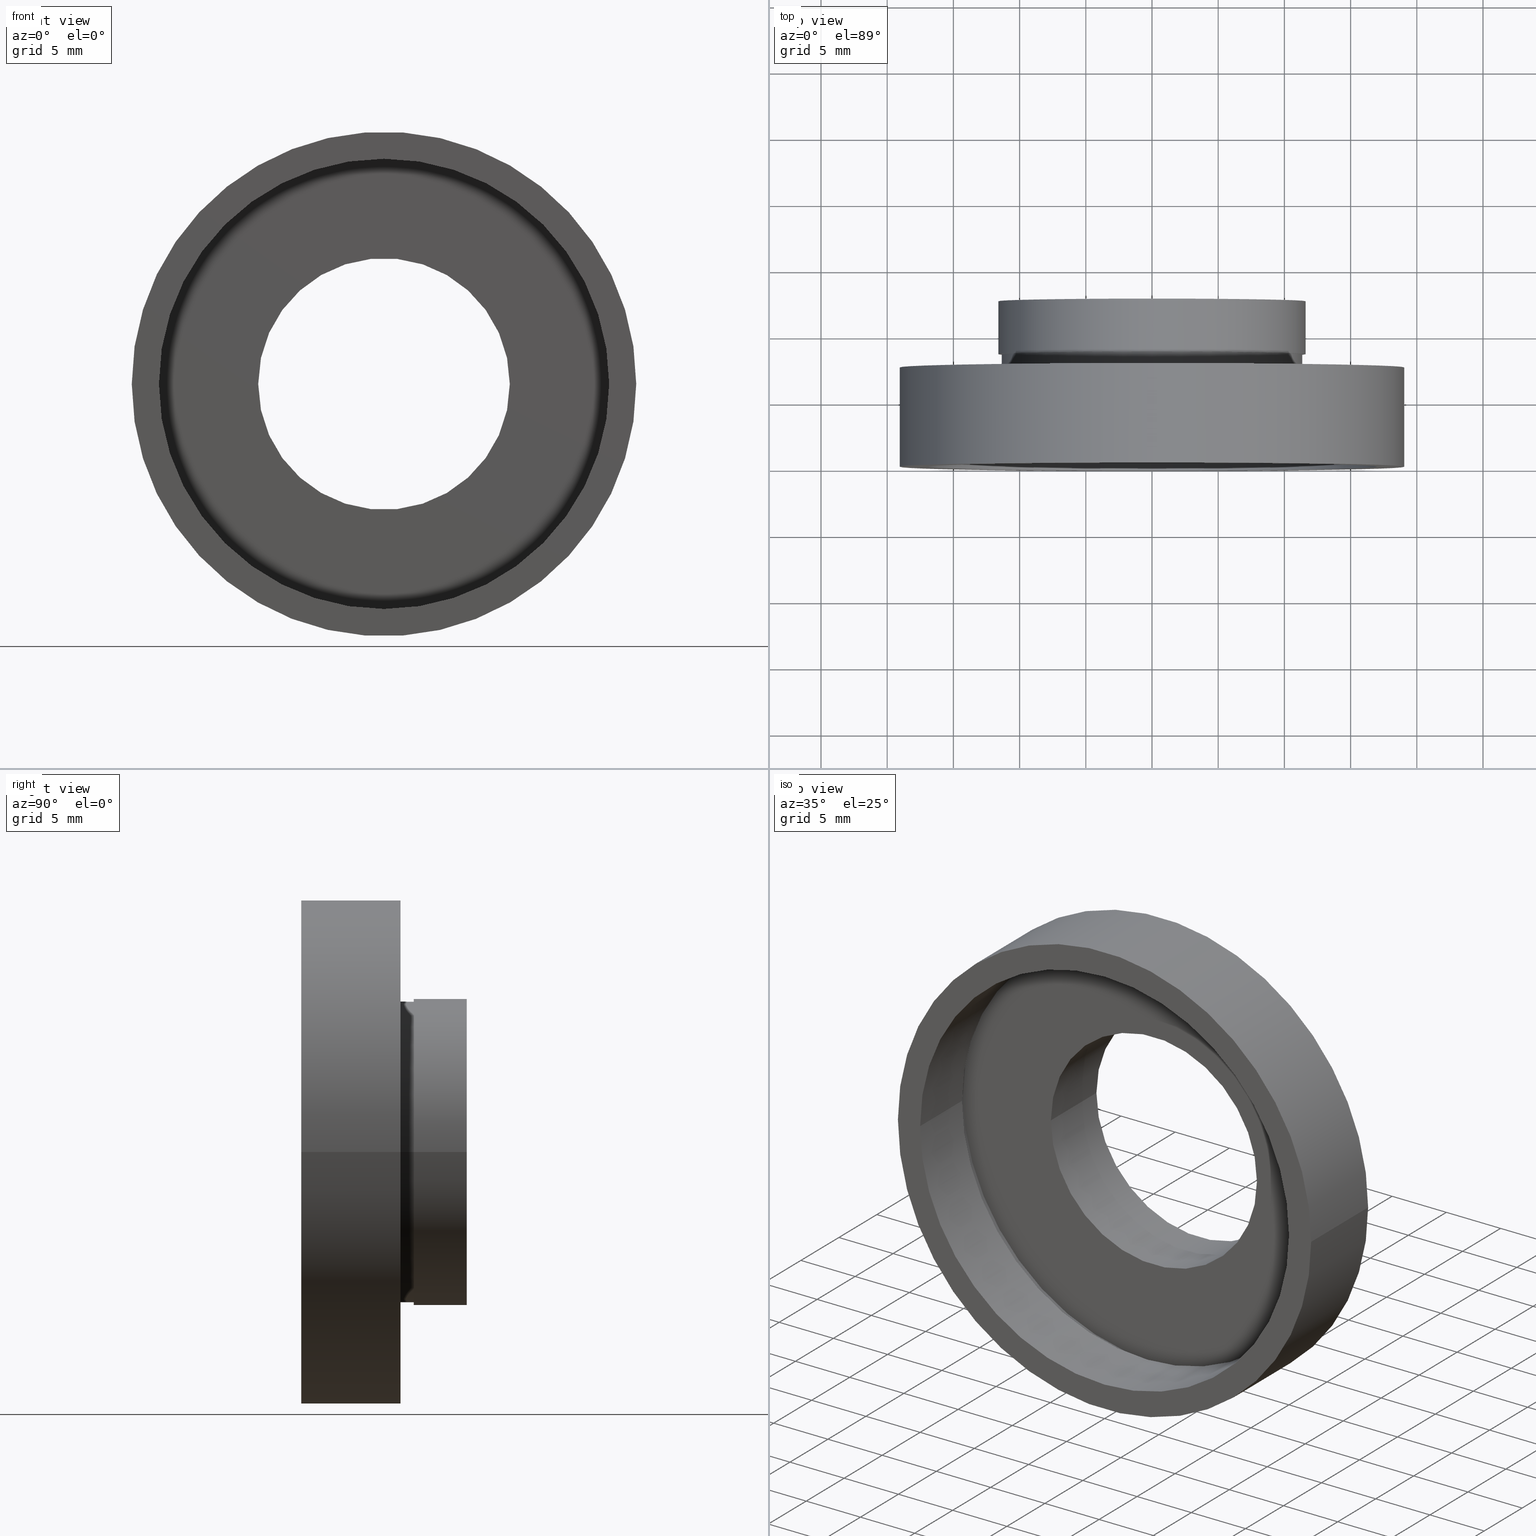
[diagram: canonical four-view strip — front | top / right | iso, engineering-drawing reading convention]
A machine part, canonical four-view strip (front | top / right | iso — engineering-drawing reading convention). The complete STEP part file that produces these views, byte-faithful:
ISO-10303-21;
HEADER;
FILE_DESCRIPTION (( 'STEP AP214' ),
    '1' );
FILE_NAME ('504058.STEP',
    '2019-10-08T05:34:07',
    ( 'user' ),
    ( '΢���й�' ),
    'SwSTEP 2.0',
    'SolidWorks 2016',
    '' );
FILE_SCHEMA (( 'AUTOMOTIVE_DESIGN' ));
ENDSEC;

DATA;
#1 = FACE_BOUND ( 'NONE', #351, .T. ) ;
#2 = DIRECTION ( 'NONE',  ( -1.000000000000000000, -1.224646799147351000E-016, 0.0000000000000000000 ) ) ;
#3 = CYLINDRICAL_SURFACE ( 'NONE', #623, 11.35000000000000000 ) ;
#4 = CARTESIAN_POINT ( 'NONE',  ( 1.149455719078123100E-015, 7.499999999999996400, 0.0000000000000000000 ) ) ;
#5 = ORIENTED_EDGE ( 'NONE', *, *, #318, .F. ) ;
#6 = EDGE_LOOP ( 'NONE', ( #181, #5, #231, #570 ) ) ;
#7 = AXIS2_PLACEMENT_3D ( 'NONE', #342, #563, #84 ) ;
#8 = CARTESIAN_POINT ( 'NONE',  ( 1.149455719078122700E-015, 7.499999999999998200, 0.0000000000000000000 ) ) ;
#9 = UNCERTAINTY_MEASURE_WITH_UNIT (LENGTH_MEASURE( 1.000000000000000100E-005 ), #310, 'distance_accuracy_value', 'NONE');
#10 = DIRECTION ( 'NONE',  ( -1.224646799147351000E-016, 1.000000000000000000, -0.0000000000000000000 ) ) ;
#11 = EDGE_CURVE ( 'NONE', #40, #461, #475, .T. ) ;
#12 = VERTEX_POINT ( 'NONE', #388 ) ;
#13 = DIRECTION ( 'NONE',  ( -1.224646799147351000E-016, 1.000000000000000000, -0.0000000000000000000 ) ) ;
#14 = CARTESIAN_POINT ( 'NONE',  ( 2.067940818438636500E-015, -3.469446951953614200E-015, 0.0000000000000000000 ) ) ;
#15 = CARTESIAN_POINT ( 'NONE',  ( 17.00000000000000400, -1.387547393403117700E-015, 2.081899558550500700E-015 ) ) ;
#16 = AXIS2_PLACEMENT_3D ( 'NONE', #207, #398, #163 ) ;
#17 = CARTESIAN_POINT ( 'NONE',  ( 9.500000000000001800, 16.88601823708207700, 1.163414459189985700E-015 ) ) ;
#18 = EDGE_LOOP ( 'NONE', ( #214, #183, #443, #91 ) ) ;
#19 = APPLICATION_CONTEXT ( 'automotive_design' ) ;
#20 = DIRECTION ( 'NONE',  ( -1.224646799147351000E-016, 1.000000000000000000, -0.0000000000000000000 ) ) ;
#21 = CARTESIAN_POINT ( 'NONE',  ( 9.500000000000001800, 12.49999999999999800, 1.163414459189985700E-015 ) ) ;
#22 = DIRECTION ( 'NONE',  ( -1.000000000000000000, -1.495451272393799500E-016, 0.0000000000000000000 ) ) ;
#23 = UNCERTAINTY_MEASURE_WITH_UNIT (LENGTH_MEASURE( 1.000000000000000100E-005 ), #164, 'distance_accuracy_value', 'NONE');
#24 = CARTESIAN_POINT ( 'NONE',  ( 0.0000000000000000000, 16.88601823708207700, 0.0000000000000000000 ) ) ;
#25 = VECTOR ( 'NONE', #33, 1000.000000000000000 ) ;
#26 = ORIENTED_EDGE ( 'NONE', *, *, #209, .T. ) ;
#27 = DIRECTION ( 'NONE',  ( -1.224646799147351000E-016, 1.000000000000000000, -0.0000000000000000000 ) ) ;
#28 = CARTESIAN_POINT ( 'NONE',  ( 11.60000000000000000, 8.499999999999998200, 0.0000000000000000000 ) ) ;
#29 = FILL_AREA_STYLE ('',( #586 ) ) ;
#30 = CARTESIAN_POINT ( 'NONE',  ( -9.500000000000001800, 16.88601823708207700, 0.0000000000000000000 ) ) ;
#31 =( GEOMETRIC_REPRESENTATION_CONTEXT ( 3 ) GLOBAL_UNCERTAINTY_ASSIGNED_CONTEXT ( ( #338 ) ) GLOBAL_UNIT_ASSIGNED_CONTEXT ( ( #584, #596, #157 ) ) REPRESENTATION_CONTEXT ( 'NONE', 'WORKASPACE' ) );
#32 = VECTOR ( 'NONE', #53, 1000.000000000000000 ) ;
#33 = DIRECTION ( 'NONE',  ( -1.224646799147351000E-016, 1.000000000000000000, -0.0000000000000000000 ) ) ;
#34 = EDGE_LOOP ( 'NONE', ( #578, #262 ) ) ;
#35 = UNCERTAINTY_MEASURE_WITH_UNIT (LENGTH_MEASURE( 1.000000000000000100E-005 ), #50, 'distance_accuracy_value', 'NONE');
#36 = DIRECTION ( 'NONE',  ( -1.000000000000000000, -1.224646799147351000E-016, 0.0000000000000000000 ) ) ;
#37 = STYLED_ITEM ( 'NONE', ( #271 ), #345 ) ;
#38 = DIRECTION ( 'NONE',  ( -1.000000000000000000, -1.224646799147351000E-016, 0.0000000000000000000 ) ) ;
#39 = CARTESIAN_POINT ( 'NONE',  ( -17.60000000000000100, 5.499999999999994700, 0.0000000000000000000 ) ) ;
#40 = VERTEX_POINT ( 'NONE', #374 ) ;
#41 =( NAMED_UNIT ( * ) SI_UNIT ( $, .STERADIAN. ) SOLID_ANGLE_UNIT ( ) );
#42 = EDGE_CURVE ( 'NONE', #441, #233, #349, .T. ) ;
#43 =( LENGTH_UNIT ( ) NAMED_UNIT ( * ) SI_UNIT ( .MILLI., .METRE. ) );
#44 = CYLINDRICAL_SURFACE ( 'NONE', #290, 17.60000000000000100 ) ;
#45 = VERTEX_POINT ( 'NONE', #256 ) ;
#46 = PLANE ( 'NONE',  #186 ) ;
#47 = ORIENTED_EDGE ( 'NONE', *, *, #409, .T. ) ;
#48 =( GEOMETRIC_REPRESENTATION_CONTEXT ( 3 ) GLOBAL_UNCERTAINTY_ASSIGNED_CONTEXT ( ( #484 ) ) GLOBAL_UNIT_ASSIGNED_CONTEXT ( ( #43, #52, #353 ) ) REPRESENTATION_CONTEXT ( 'NONE', 'WORKASPACE' ) );
#49 = ADVANCED_FACE ( 'NONE', ( #101 ), #439, .F. ) ;
#50 =( LENGTH_UNIT ( ) NAMED_UNIT ( * ) SI_UNIT ( .MILLI., .METRE. ) );
#51 = STYLED_ITEM ( 'NONE', ( #153 ), #471 ) ;
#52 =( NAMED_UNIT ( * ) PLANE_ANGLE_UNIT ( ) SI_UNIT ( $, .RADIAN. ) );
#53 = DIRECTION ( 'NONE',  ( -1.224646799147351000E-016, 1.000000000000000000, -0.0000000000000000000 ) ) ;
#54 = FACE_BOUND ( 'NONE', #118, .T. ) ;
#55 = DIRECTION ( 'NONE',  ( 1.000000000000000000, 0.0000000000000000000, 0.0000000000000000000 ) ) ;
#56 = ORIENTED_EDGE ( 'NONE', *, *, #529, .F. ) ;
#57 = CARTESIAN_POINT ( 'NONE',  ( 0.0000000000000000000, 16.88601823708207700, 0.0000000000000000000 ) ) ;
#58 = EDGE_LOOP ( 'NONE', ( #96, #165, #68, #394 ) ) ;
#59 = CARTESIAN_POINT ( 'NONE',  ( 0.0000000000000000000, 16.88601823708207700, 0.0000000000000000000 ) ) ;
#60 = ORIENTED_EDGE ( 'NONE', *, *, #378, .T. ) ;
#61 = DIRECTION ( 'NONE',  ( -1.224646799147351000E-016, 1.000000000000000000, -0.0000000000000000000 ) ) ;
#62 = FACE_OUTER_BOUND ( 'NONE', #125, .T. ) ;
#63 = AXIS2_PLACEMENT_3D ( 'NONE', #135, #515, #336 ) ;
#64 = DIRECTION ( 'NONE',  ( -1.224646799147351000E-016, 1.000000000000000000, -0.0000000000000000000 ) ) ;
#65 = EDGE_CURVE ( 'NONE', #571, #148, #521, .T. ) ;
#66 = EDGE_LOOP ( 'NONE', ( #94, #375 ) ) ;
#67 = VERTEX_POINT ( 'NONE', #171 ) ;
#68 = ORIENTED_EDGE ( 'NONE', *, *, #303, .T. ) ;
#69 = CIRCLE ( 'NONE', #85, 19.05000000000000100 ) ;
#70 = FACE_OUTER_BOUND ( 'NONE', #172, .T. ) ;
#71 = AXIS2_PLACEMENT_3D ( 'NONE', #387, #203, #73 ) ;
#72 = DIRECTION ( 'NONE',  ( -1.000000000000000000, 0.0000000000000000000, 0.0000000000000000000 ) ) ;
#73 = DIRECTION ( 'NONE',  ( -1.000000000000000000, -9.856383386231857600E-017, 0.0000000000000000000 ) ) ;
#74 = VERTEX_POINT ( 'NONE', #316 ) ;
#75 = DIRECTION ( 'NONE',  ( -1.224646799147351000E-016, 1.000000000000000000, -0.0000000000000000000 ) ) ;
#76 = AXIS2_PLACEMENT_3D ( 'NONE', #57, #204, #430 ) ;
#77 = DIRECTION ( 'NONE',  ( -1.000000000000000000, -1.971276677246371500E-016, 0.0000000000000000000 ) ) ;
#78 = DIRECTION ( 'NONE',  ( 1.224646799147351000E-016, -1.000000000000000000, 0.0000000000000000000 ) ) ;
#79 = FACE_BOUND ( 'NONE', #331, .T. ) ;
#80 = DIRECTION ( 'NONE',  ( -1.224646799147351000E-016, 1.000000000000000000, -0.0000000000000000000 ) ) ;
#81 = ORIENTED_EDGE ( 'NONE', *, *, #341, .T. ) ;
#82 = ORIENTED_EDGE ( 'NONE', *, *, #199, .F. ) ;
#83 = SURFACE_SIDE_STYLE ('',( #572 ) ) ;
#84 = DIRECTION ( 'NONE',  ( -1.000000000000000000, -9.130123557772668300E-017, 0.0000000000000000000 ) ) ;
#85 = AXIS2_PLACEMENT_3D ( 'NONE', #243, #61, #260 ) ;
#86 = DIRECTION ( 'NONE',  ( -1.000000000000000000, -1.821231995776175700E-016, 0.0000000000000000000 ) ) ;
#87 = EDGE_CURVE ( 'NONE', #332, #315, #410, .T. ) ;
#88 = SURFACE_STYLE_FILL_AREA ( #617 ) ;
#89 = ORIENTED_EDGE ( 'NONE', *, *, #361, .T. ) ;
#90 = ORIENTED_EDGE ( 'NONE', *, *, #341, .F. ) ;
#91 = ORIENTED_EDGE ( 'NONE', *, *, #213, .F. ) ;
#92 = DIRECTION ( 'NONE',  ( -1.000000000000000000, -9.856383386231857600E-017, 0.0000000000000000000 ) ) ;
#93 = DIRECTION ( 'NONE',  ( -1.000000000000000000, -1.528390727732869900E-016, 0.0000000000000000000 ) ) ;
#94 = ORIENTED_EDGE ( 'NONE', *, *, #169, .F. ) ;
#95 = EDGE_LOOP ( 'NONE', ( #402, #155, #26, #620 ) ) ;
#96 = ORIENTED_EDGE ( 'NONE', *, *, #11, .F. ) ;
#97 = MECHANICAL_DESIGN_GEOMETRIC_PRESENTATION_REPRESENTATION (  '', ( #166 ), #48 ) ;
#98 = EDGE_CURVE ( 'NONE', #215, #67, #431, .T. ) ;
#99 =( LENGTH_UNIT ( ) NAMED_UNIT ( * ) SI_UNIT ( .MILLI., .METRE. ) );
#100 = CIRCLE ( 'NONE', #392, 9.500000000000001800 ) ;
#101 = FACE_OUTER_BOUND ( 'NONE', #507, .T. ) ;
#102 = AXIS2_PLACEMENT_3D ( 'NONE', #573, #553, #568 ) ;
#103 = FACE_OUTER_BOUND ( 'NONE', #514, .T. ) ;
#104 = ORIENTED_EDGE ( 'NONE', *, *, #98, .T. ) ;
#105 = CARTESIAN_POINT ( 'NONE',  ( 11.60000000000000000, 8.500000000000000000, 1.420590287010929500E-015 ) ) ;
#106 = ORIENTED_EDGE ( 'NONE', *, *, #178, .F. ) ;
#107 = PRODUCT ( '504058', '504058', '', ( #314 ) ) ;
#108 = CARTESIAN_POINT ( 'NONE',  ( 0.0000000000000000000, 16.88601823708207700, 0.0000000000000000000 ) ) ;
#109 = FILL_AREA_STYLE ('',( #358 ) ) ;
#110 = AXIS2_PLACEMENT_3D ( 'NONE', #108, #211, #467 ) ;
#111 = APPLICATION_CONTEXT ( 'automotive_design' ) ;
#112 = EDGE_CURVE ( 'NONE', #67, #233, #132, .T. ) ;
#113 = ORIENTED_EDGE ( 'NONE', *, *, #98, .F. ) ;
#114 =( NAMED_UNIT ( * ) SI_UNIT ( $, .STERADIAN. ) SOLID_ANGLE_UNIT ( ) );
#115 = DIRECTION ( 'NONE',  ( -1.224646799147351000E-016, 1.000000000000000000, -0.0000000000000000000 ) ) ;
#116 = DIRECTION ( 'NONE',  ( -1.224646799147351000E-016, 1.000000000000000000, -0.0000000000000000000 ) ) ;
#117 = ORIENTED_EDGE ( 'NONE', *, *, #87, .T. ) ;
#118 = EDGE_LOOP ( 'NONE', ( #56, #523 ) ) ;
#119 = CARTESIAN_POINT ( 'NONE',  ( 5.371323195044474300E-016, 12.49999999999999600, 0.0000000000000000000 ) ) ;
#120 = AXIS2_PLACEMENT_3D ( 'NONE', #548, #185, #252 ) ;
#121 = EDGE_CURVE ( 'NONE', #621, #415, #159, .T. ) ;
#122 = CARTESIAN_POINT ( 'NONE',  ( -11.59999999999999600, 8.499999999999996400, 0.0000000000000000000 ) ) ;
#123 = DIRECTION ( 'NONE',  ( -1.000000000000000000, 0.0000000000000000000, 0.0000000000000000000 ) ) ;
#124 = ORIENTED_EDGE ( 'NONE', *, *, #112, .T. ) ;
#125 = EDGE_LOOP ( 'NONE', ( #197, #538 ) ) ;
#126 = CARTESIAN_POINT ( 'NONE',  ( 9.500000000000001800, 6.499999999999998200, 0.0000000000000000000 ) ) ;
#127 = SURFACE_SIDE_STYLE ('',( #240 ) ) ;
#128 = FACE_OUTER_BOUND ( 'NONE', #6, .T. ) ;
#129 = CIRCLE ( 'NONE', #401, 9.500000000000000000 ) ;
#130 = DIRECTION ( 'NONE',  ( 1.000000000000000000, 1.224646799147351000E-016, 0.0000000000000000000 ) ) ;
#131 = DIRECTION ( 'NONE',  ( 0.0000000000000000000, 0.0000000000000000000, 1.000000000000000000 ) ) ;
#132 = CIRCLE ( 'NONE', #270, 17.60000000000000100 ) ;
#133 = ORIENTED_EDGE ( 'NONE', *, *, #303, .F. ) ;
#134 = AXIS2_PLACEMENT_3D ( 'NONE', #152, #269, #36 ) ;
#135 = CARTESIAN_POINT ( 'NONE',  ( 0.0000000000000000000, 16.88601823708207700, 0.0000000000000000000 ) ) ;
#136 = CIRCLE ( 'NONE', #517, 17.00000000000000400 ) ;
#137 = FACE_OUTER_BOUND ( 'NONE', #556, .T. ) ;
#138 = EDGE_LOOP ( 'NONE', ( #429, #555 ) ) ;
#139 = CARTESIAN_POINT ( 'NONE',  ( 0.0000000000000000000, 16.88601823708207700, 0.0000000000000000000 ) ) ;
#140 = DIRECTION ( 'NONE',  ( -1.224646799147351000E-016, 1.000000000000000000, -0.0000000000000000000 ) ) ;
#141 = PRESENTATION_LAYER_ASSIGNMENT (  '', '', ( #166 ) ) ;
#142 = DIRECTION ( 'NONE',  ( -1.224646799147351000E-016, 1.000000000000000000, -0.0000000000000000000 ) ) ;
#143 = DIRECTION ( 'NONE',  ( -1.224646799147351000E-016, 1.000000000000000000, 0.0000000000000000000 ) ) ;
#144 = EDGE_LOOP ( 'NONE', ( #455, #462 ) ) ;
#145 = DIRECTION ( 'NONE',  ( -1.224646799147351000E-016, 1.000000000000000000, -0.0000000000000000000 ) ) ;
#146 = AXIS2_PLACEMENT_3D ( 'NONE', #580, #531, #446 ) ;
#147 = DIRECTION ( 'NONE',  ( -1.224646799147351000E-016, 1.000000000000000000, -0.0000000000000000000 ) ) ;
#148 = VERTEX_POINT ( 'NONE', #557 ) ;
#149 = VERTEX_POINT ( 'NONE', #15 ) ;
#150 = DIRECTION ( 'NONE',  ( -1.224646799147351000E-016, 1.000000000000000000, -0.0000000000000000000 ) ) ;
#151 = CARTESIAN_POINT ( 'NONE',  ( 5.371323195044473300E-016, 12.49999999999999600, 0.0000000000000000000 ) ) ;
#152 = CARTESIAN_POINT ( 'NONE',  ( 19.05000000000000100, -8.225062277234867800E-016, 0.0000000000000000000 ) ) ;
#153 = PRESENTATION_STYLE_ASSIGNMENT (( #371 ) ) ;
#154 = EDGE_LOOP ( 'NONE', ( #579, #297, #104, #124 ) ) ;
#155 = ORIENTED_EDGE ( 'NONE', *, *, #158, .T. ) ;
#156 = DIRECTION ( 'NONE',  ( -1.224646799147351000E-016, 1.000000000000000000, -0.0000000000000000000 ) ) ;
#157 =( NAMED_UNIT ( * ) SI_UNIT ( $, .STERADIAN. ) SOLID_ANGLE_UNIT ( ) );
#158 = EDGE_CURVE ( 'NONE', #221, #421, #451, .T. ) ;
#159 = CIRCLE ( 'NONE', #497, 19.04999999999999700 ) ;
#160 =( NAMED_UNIT ( * ) SI_UNIT ( $, .STERADIAN. ) SOLID_ANGLE_UNIT ( ) );
#161 = ORIENTED_EDGE ( 'NONE', *, *, #65, .T. ) ;
#162 = ORIENTED_EDGE ( 'NONE', *, *, #372, .F. ) ;
#163 = DIRECTION ( 'NONE',  ( -1.000000000000000000, -1.224646799147351000E-016, 0.0000000000000000000 ) ) ;
#164 =( LENGTH_UNIT ( ) NAMED_UNIT ( * ) SI_UNIT ( .MILLI., .METRE. ) );
#165 = ORIENTED_EDGE ( 'NONE', *, *, #175, .T. ) ;
#166 = STYLED_ITEM ( 'NONE', ( #362 ), #565 ) ;
#167 = APPLICATION_PROTOCOL_DEFINITION ( 'draft international standard', 'automotive_design', 1998, #19 ) ;
#168 = DIRECTION ( 'NONE',  ( -1.000000000000000000, -1.495451272393799500E-016, 0.0000000000000000000 ) ) ;
#169 = EDGE_CURVE ( 'NONE', #148, #571, #136, .T. ) ;
#170 = COLOUR_RGB ( '',1.000000000000000000, 1.000000000000000000, 1.000000000000000000 ) ;
#171 = CARTESIAN_POINT ( 'NONE',  ( -17.60000000000000100, 6.499999999999995600, 0.0000000000000000000 ) ) ;
#172 = EDGE_LOOP ( 'NONE', ( #468, #412, #615, #47 ) ) ;
#173 = EDGE_LOOP ( 'NONE', ( #595, #440 ) ) ;
#174 = CARTESIAN_POINT ( 'NONE',  ( 17.60000000000000100, 5.499999999999998200, 2.155378366499341600E-015 ) ) ;
#175 = EDGE_CURVE ( 'NONE', #40, #545, #179, .T. ) ;
#176 = CARTESIAN_POINT ( 'NONE',  ( 1.026991039163387700E-015, 8.499999999999998200, 0.0000000000000000000 ) ) ;
#177 = DIRECTION ( 'NONE',  ( -1.224646799147351000E-016, 1.000000000000000000, -0.0000000000000000000 ) ) ;
#178 = EDGE_CURVE ( 'NONE', #315, #332, #302, .T. ) ;
#179 = CIRCLE ( 'NONE', #279, 11.35000000000000000 ) ;
#180 = VECTOR ( 'NONE', #444, 1000.000000000000000 ) ;
#181 = ORIENTED_EDGE ( 'NONE', *, *, #382, .F. ) ;
#182 =( NAMED_UNIT ( * ) SI_UNIT ( $, .STERADIAN. ) SOLID_ANGLE_UNIT ( ) );
#183 = ORIENTED_EDGE ( 'NONE', *, *, #178, .T. ) ;
#184 = PRODUCT_DEFINITION_SHAPE ( 'NONE', 'NONE',  #493 ) ;
#185 = DIRECTION ( 'NONE',  ( -1.224646799147351000E-016, 1.000000000000000000, -0.0000000000000000000 ) ) ;
#186 = AXIS2_PLACEMENT_3D ( 'NONE', #126, #143, #2 ) ;
#187 =( GEOMETRIC_REPRESENTATION_CONTEXT ( 3 ) GLOBAL_UNCERTAINTY_ASSIGNED_CONTEXT ( ( #286 ) ) GLOBAL_UNIT_ASSIGNED_CONTEXT ( ( #518, #476, #41 ) ) REPRESENTATION_CONTEXT ( 'NONE', 'WORKASPACE' ) );
#188 = DIRECTION ( 'NONE',  ( -1.000000000000000000, -1.528390727732869900E-016, 0.0000000000000000000 ) ) ;
#189 = VECTOR ( 'NONE', #490, 1000.000000000000000 ) ;
#190 = CIRCLE ( 'NONE', #417, 19.05000000000000100 ) ;
#191 = CLOSED_SHELL ( 'NONE', ( #322, #512, #565, #560, #546, #49, #614, #406, #464, #396, #236, #345, #212, #471, #267, #535, #428, #457 ) ) ;
#192 = DIRECTION ( 'NONE',  ( 1.000000000000000000, 1.224646799147351000E-016, 0.0000000000000000000 ) ) ;
#193 =( NAMED_UNIT ( * ) PLANE_ANGLE_UNIT ( ) SI_UNIT ( $, .RADIAN. ) );
#194 = CARTESIAN_POINT ( 'NONE',  ( 9.500000000000001800, 12.49999999999999800, 0.0000000000000000000 ) ) ;
#195 = PLANE ( 'NONE',  #206 ) ;
#196 = DIRECTION ( 'NONE',  ( -1.000000000000000000, -1.020425574104004000E-016, 0.0000000000000000000 ) ) ;
#197 = ORIENTED_EDGE ( 'NONE', *, *, #121, .F. ) ;
#198 =( GEOMETRIC_REPRESENTATION_CONTEXT ( 3 ) GLOBAL_UNCERTAINTY_ASSIGNED_CONTEXT ( ( #465 ) ) GLOBAL_UNIT_ASSIGNED_CONTEXT ( ( #420, #244, #237 ) ) REPRESENTATION_CONTEXT ( 'NONE', 'WORKASPACE' ) );
#199 = EDGE_CURVE ( 'NONE', #45, #12, #190, .T. ) ;
#200 = DIRECTION ( 'NONE',  ( -1.224646799147351000E-016, 1.000000000000000000, -0.0000000000000000000 ) ) ;
#201 = CARTESIAN_POINT ( 'NONE',  ( -11.34999999999999800, 7.499999999999994700, 0.0000000000000000000 ) ) ;
#202 = COLOUR_RGB ( '',1.000000000000000000, 1.000000000000000000, 1.000000000000000000 ) ;
#203 = DIRECTION ( 'NONE',  ( -1.224646799147351000E-016, 1.000000000000000000, -0.0000000000000000000 ) ) ;
#204 = DIRECTION ( 'NONE',  ( -1.224646799147351000E-016, 1.000000000000000000, -0.0000000000000000000 ) ) ;
#205 = ORIENTED_EDGE ( 'NONE', *, *, #372, .T. ) ;
#206 = AXIS2_PLACEMENT_3D ( 'NONE', #28, #373, #38 ) ;
#207 = CARTESIAN_POINT ( 'NONE',  ( 2.067940818438636500E-015, -3.469446951953614200E-015, 0.0000000000000000000 ) ) ;
#208 = DIRECTION ( 'NONE',  ( -1.224646799147351000E-016, 1.000000000000000000, -0.0000000000000000000 ) ) ;
#209 = EDGE_CURVE ( 'NONE', #421, #395, #287, .T. ) ;
#210 = VECTOR ( 'NONE', #80, 1000.000000000000000 ) ;
#211 = DIRECTION ( 'NONE',  ( -1.224646799147351000E-016, 1.000000000000000000, -0.0000000000000000000 ) ) ;
#212 = ADVANCED_FACE ( 'NONE', ( #79, #569 ), #357, .F. ) ;
#213 = EDGE_CURVE ( 'NONE', #74, #404, #265, .T. ) ;
#214 = ORIENTED_EDGE ( 'NONE', *, *, #539, .F. ) ;
#215 = VERTEX_POINT ( 'NONE', #39 ) ;
#216 = CARTESIAN_POINT ( 'NONE',  ( 1.026991039163388100E-015, 8.499999999999994700, 0.0000000000000000000 ) ) ;
#217 = DIRECTION ( 'NONE',  ( -1.000000000000000000, -1.224646799147351500E-016, 0.0000000000000000000 ) ) ;
#218 = SURFACE_STYLE_FILL_AREA ( #613 ) ;
#219 = AXIS2_PLACEMENT_3D ( 'NONE', #216, #251, #188 ) ;
#220 = EDGE_CURVE ( 'NONE', #332, #404, #438, .T. ) ;
#221 = VERTEX_POINT ( 'NONE', #386 ) ;
#222 = EDGE_LOOP ( 'NONE', ( #288, #509, #391, #133 ) ) ;
#223 = DIRECTION ( 'NONE',  ( -1.224646799147351000E-016, 1.000000000000000000, -0.0000000000000000000 ) ) ;
#224 = CARTESIAN_POINT ( 'NONE',  ( 11.35000000000000100, 7.499999999999997300, 0.0000000000000000000 ) ) ;
#225 = CARTESIAN_POINT ( 'NONE',  ( 17.60000000000000100, 6.499999999999999100, 2.155378366499341600E-015 ) ) ;
#226 = CARTESIAN_POINT ( 'NONE',  ( 5.371323195044473300E-016, 12.49999999999999600, 0.0000000000000000000 ) ) ;
#227 = AXIS2_PLACEMENT_3D ( 'NONE', #139, #208, #77 ) ;
#228 = EDGE_CURVE ( 'NONE', #296, #148, #426, .T. ) ;
#229 = CIRCLE ( 'NONE', #102, 17.60000000000000100 ) ;
#230 = COLOUR_RGB ( '',1.000000000000000000, 1.000000000000000000, 1.000000000000000000 ) ;
#231 = ORIENTED_EDGE ( 'NONE', *, *, #228, .T. ) ;
#232 = FILL_AREA_STYLE_COLOUR ( '', #294 ) ;
#233 = VERTEX_POINT ( 'NONE', #225 ) ;
#234 = DIRECTION ( 'NONE',  ( 1.224646799147351000E-016, -1.000000000000000000, 0.0000000000000000000 ) ) ;
#235 = SURFACE_STYLE_USAGE ( .BOTH. , #239 ) ;
#236 = ADVANCED_FACE ( 'NONE', ( #137, #1 ), #46, .F. ) ;
#237 =( NAMED_UNIT ( * ) SI_UNIT ( $, .STERADIAN. ) SOLID_ANGLE_UNIT ( ) );
#238 = FACE_OUTER_BOUND ( 'NONE', #144, .T. ) ;
#239 = SURFACE_SIDE_STYLE ('',( #561 ) ) ;
#240 = SURFACE_STYLE_FILL_AREA ( #109 ) ;
#241 = PLANE ( 'NONE',  #134 ) ;
#242 = EDGE_CURVE ( 'NONE', #404, #74, #369, .T. ) ;
#243 = CARTESIAN_POINT ( 'NONE',  ( 1.149455719078122700E-015, 7.499999999999998200, 0.0000000000000000000 ) ) ;
#244 =( NAMED_UNIT ( * ) PLANE_ANGLE_UNIT ( ) SI_UNIT ( $, .RADIAN. ) );
#245 = FILL_AREA_STYLE ('',( #272 ) ) ;
#246 = ORIENTED_EDGE ( 'NONE', *, *, #312, .F. ) ;
#247 = AXIS2_PLACEMENT_3D ( 'NONE', #151, #75, #249 ) ;
#248 = MECHANICAL_DESIGN_GEOMETRIC_PRESENTATION_REPRESENTATION (  '', ( #277 ), #348 ) ;
#249 = DIRECTION ( 'NONE',  ( -1.000000000000000000, -1.826024711554533400E-016, 0.0000000000000000000 ) ) ;
#250 = EDGE_CURVE ( 'NONE', #221, #299, #129, .T. ) ;
#251 = DIRECTION ( 'NONE',  ( -1.224646799147351000E-016, 1.000000000000000000, -0.0000000000000000000 ) ) ;
#252 = DIRECTION ( 'NONE',  ( -1.000000000000000000, 0.0000000000000000000, 0.0000000000000000000 ) ) ;
#253 = SURFACE_STYLE_USAGE ( .BOTH. , #127 ) ;
#254 = ORIENTED_EDGE ( 'NONE', *, *, #242, .F. ) ;
#255 =( LENGTH_UNIT ( ) NAMED_UNIT ( * ) SI_UNIT ( .MILLI., .METRE. ) );
#256 = CARTESIAN_POINT ( 'NONE',  ( 19.05000000000000100, 7.500000000000000900, 2.332952152375707600E-015 ) ) ;
#257 = CARTESIAN_POINT ( 'NONE',  ( -19.04999999999999400, -5.802399104329317500E-015, 0.0000000000000000000 ) ) ;
#258 = CYLINDRICAL_SURFACE ( 'NONE', #472, 19.04999999999999700 ) ;
#259 = MECHANICAL_DESIGN_GEOMETRIC_PRESENTATION_REPRESENTATION (  '', ( #550 ), #198 ) ;
#260 = DIRECTION ( 'NONE',  ( -1.000000000000000000, -1.365923996832131600E-016, 0.0000000000000000000 ) ) ;
#261 = DIRECTION ( 'NONE',  ( 1.224646799147351000E-016, -1.000000000000000000, 0.0000000000000000000 ) ) ;
#262 = ORIENTED_EDGE ( 'NONE', *, *, #424, .T. ) ;
#263 = CARTESIAN_POINT ( 'NONE',  ( -11.34999999999999800, 8.499999999999992900, 0.0000000000000000000 ) ) ;
#264 = CARTESIAN_POINT ( 'NONE',  ( -11.60000000000000000, 16.88601823708207700, 0.0000000000000000000 ) ) ;
#265 = CIRCLE ( 'NONE', #335, 11.60000000000000000 ) ;
#266 = AXIS2_PLACEMENT_3D ( 'NONE', #119, #13, #366 ) ;
#267 = ADVANCED_FACE ( 'NONE', ( #466, #482 ), #195, .F. ) ;
#268 = ORIENTED_EDGE ( 'NONE', *, *, #112, .F. ) ;
#269 = DIRECTION ( 'NONE',  ( -1.224646799147351000E-016, 1.000000000000000000, 0.0000000000000000000 ) ) ;
#270 = AXIS2_PLACEMENT_3D ( 'NONE', #479, #589, #92 ) ;
#271 = PRESENTATION_STYLE_ASSIGNMENT (( #285 ) ) ;
#272 = FILL_AREA_STYLE_COLOUR ( '', #170 ) ;
#273 = PRESENTATION_STYLE_ASSIGNMENT (( #253 ) ) ;
#274 = ORIENTED_EDGE ( 'NONE', *, *, #42, .T. ) ;
#275 = EDGE_LOOP ( 'NONE', ( #117, #594, #254, #474 ) ) ;
#276 = SURFACE_STYLE_USAGE ( .BOTH. , #432 ) ;
#277 = STYLED_ITEM ( 'NONE', ( #273 ), #389 ) ;
#278 = CARTESIAN_POINT ( 'NONE',  ( 5.371323195044474300E-016, 12.49999999999999600, 0.0000000000000000000 ) ) ;
#279 = AXIS2_PLACEMENT_3D ( 'NONE', #4, #618, #610 ) ;
#280 = DIRECTION ( 'NONE',  ( -1.000000000000000000, -1.971276677246371500E-016, 0.0000000000000000000 ) ) ;
#281 = EDGE_LOOP ( 'NONE', ( #246, #274, #81, #113 ) ) ;
#282 =( NAMED_UNIT ( * ) PLANE_ANGLE_UNIT ( ) SI_UNIT ( $, .RADIAN. ) );
#283 = DIRECTION ( 'NONE',  ( -1.000000000000000000, -9.856383386231857600E-017, 0.0000000000000000000 ) ) ;
#284 = DIRECTION ( 'NONE',  ( 1.000000000000000000, 1.224646799147351000E-016, 0.0000000000000000000 ) ) ;
#285 = SURFACE_STYLE_USAGE ( .BOTH. , #598 ) ;
#286 = UNCERTAINTY_MEASURE_WITH_UNIT (LENGTH_MEASURE( 1.000000000000000100E-005 ), #518, 'distance_accuracy_value', 'NONE');
#287 = CIRCLE ( 'NONE', #247, 9.500000000000001800 ) ;
#288 = ORIENTED_EDGE ( 'NONE', *, *, #529, .T. ) ;
#289 = CARTESIAN_POINT ( 'NONE',  ( 11.35000000000000100, 8.499999999999996400, 1.389974117032245900E-015 ) ) ;
#290 = AXIS2_PLACEMENT_3D ( 'NONE', #59, #156, #280 ) ;
#291 = ORIENTED_EDGE ( 'NONE', *, *, #393, .T. ) ;
#292 = ORIENTED_EDGE ( 'NONE', *, *, #566, .T. ) ;
#293 = STYLED_ITEM ( 'NONE', ( #501 ), #49 ) ;
#294 = COLOUR_RGB ( '',1.000000000000000000, 1.000000000000000000, 1.000000000000000000 ) ;
#295 = PRESENTATION_STYLE_ASSIGNMENT (( #276 ) ) ;
#296 = VERTEX_POINT ( 'NONE', #325 ) ;
#297 = ORIENTED_EDGE ( 'NONE', *, *, #352, .F. ) ;
#298 = AXIS2_PLACEMENT_3D ( 'NONE', #194, #78, #130 ) ;
#299 = VERTEX_POINT ( 'NONE', #327 ) ;
#300 = CARTESIAN_POINT ( 'NONE',  ( 0.0000000000000000000, 16.88601823708207700, 0.0000000000000000000 ) ) ;
#301 = FILL_AREA_STYLE_COLOUR ( '', #202 ) ;
#302 = CIRCLE ( 'NONE', #376, 11.59999999999999800 ) ;
#303 = EDGE_CURVE ( 'NONE', #545, #510, #600, .T. ) ;
#304 = EDGE_LOOP ( 'NONE', ( #89, #291 ) ) ;
#305 = ORIENTED_EDGE ( 'NONE', *, *, #228, .F. ) ;
#306 = SURFACE_SIDE_STYLE ('',( #88 ) ) ;
#307 = STYLED_ITEM ( 'NONE', ( #295 ), #323 ) ;
#308 = PRESENTATION_LAYER_ASSIGNMENT (  '', '', ( #277 ) ) ;
#309 = COLOUR_RGB ( '',1.000000000000000000, 1.000000000000000000, 1.000000000000000000 ) ;
#310 =( LENGTH_UNIT ( ) NAMED_UNIT ( * ) SI_UNIT ( .MILLI., .METRE. ) );
#311 = LINE ( 'NONE', #30, #519 ) ;
#312 = EDGE_CURVE ( 'NONE', #441, #215, #321, .T. ) ;
#313 = CIRCLE ( 'NONE', #478, 11.35000000000000000 ) ;
#314 = PRODUCT_CONTEXT ( 'NONE', #111, 'mechanical' ) ;
#315 = VERTEX_POINT ( 'NONE', #105 ) ;
#316 = CARTESIAN_POINT ( 'NONE',  ( 11.60000000000000000, 12.49999999999999800, 1.420590287010929500E-015 ) ) ;
#317 = CARTESIAN_POINT ( 'NONE',  ( 17.00000000000000400, 5.500000000000000000, 0.0000000000000000000 ) ) ;
#318 = EDGE_CURVE ( 'NONE', #296, #149, #552, .T. ) ;
#319 = FACE_OUTER_BOUND ( 'NONE', #173, .T. ) ;
#320 = CARTESIAN_POINT ( 'NONE',  ( -11.35000000000000000, 16.88601823708207700, 0.0000000000000000000 ) ) ;
#321 = CIRCLE ( 'NONE', #71, 17.60000000000000100 ) ;
#322 = ADVANCED_FACE ( 'NONE', ( #103 ), #609, .T. ) ;
#323 = MANIFOLD_SOLID_BREP ( '��ת1', #191 ) ;
#324 = STYLED_ITEM ( 'NONE', ( #437 ), #406 ) ;
#325 = CARTESIAN_POINT ( 'NONE',  ( -16.99999999999999600, -5.551346510504111700E-015, 0.0000000000000000000 ) ) ;
#326 = EDGE_CURVE ( 'NONE', #299, #395, #311, .T. ) ;
#327 = CARTESIAN_POINT ( 'NONE',  ( -9.499999999999998200, 6.499999999999996400, 0.0000000000000000000 ) ) ;
#328 = LINE ( 'NONE', #379, #380 ) ;
#329 = CYLINDRICAL_SURFACE ( 'NONE', #120, 9.500000000000001800 ) ;
#330 = ORIENTED_EDGE ( 'NONE', *, *, #588, .F. ) ;
#331 = EDGE_LOOP ( 'NONE', ( #486, #554 ) ) ;
#332 = VERTEX_POINT ( 'NONE', #122 ) ;
#333 = DIRECTION ( 'NONE',  ( -1.224646799147351000E-016, 1.000000000000000000, -0.0000000000000000000 ) ) ;
#334 = FILL_AREA_STYLE ('',( #383 ) ) ;
#335 = AXIS2_PLACEMENT_3D ( 'NONE', #278, #384, #385 ) ;
#336 = DIRECTION ( 'NONE',  ( -1.000000000000000000, 0.0000000000000000000, 0.0000000000000000000 ) ) ;
#337 = DIRECTION ( 'NONE',  ( -1.224646799147351000E-016, 1.000000000000000000, -0.0000000000000000000 ) ) ;
#338 = UNCERTAINTY_MEASURE_WITH_UNIT (LENGTH_MEASURE( 1.000000000000000100E-005 ), #584, 'distance_accuracy_value', 'NONE');
#339 = SHAPE_DEFINITION_REPRESENTATION ( #184, #389 ) ;
#340 = DIRECTION ( 'NONE',  ( -1.000000000000000000, -1.826024711554533400E-016, 0.0000000000000000000 ) ) ;
#341 = EDGE_CURVE ( 'NONE', #233, #67, #229, .T. ) ;
#342 = CARTESIAN_POINT ( 'NONE',  ( 1.271920398992858000E-015, 6.499999999999997300, 0.0000000000000000000 ) ) ;
#343 = CARTESIAN_POINT ( 'NONE',  ( -17.60000000000000100, 16.88601823708207300, 0.0000000000000000000 ) ) ;
#344 = SURFACE_STYLE_FILL_AREA ( #483 ) ;
#345 = ADVANCED_FACE ( 'NONE', ( #70 ), #418, .F. ) ;
#346 = CARTESIAN_POINT ( 'NONE',  ( 0.0000000000000000000, 16.88601823708207700, 0.0000000000000000000 ) ) ;
#347 = AXIS2_PLACEMENT_3D ( 'NONE', #346, #356, #86 ) ;
#348 =( GEOMETRIC_REPRESENTATION_CONTEXT ( 3 ) GLOBAL_UNCERTAINTY_ASSIGNED_CONTEXT ( ( #400 ) ) GLOBAL_UNIT_ASSIGNED_CONTEXT ( ( #255, #480, #581 ) ) REPRESENTATION_CONTEXT ( 'NONE', 'WORKASPACE' ) );
#349 = LINE ( 'NONE', #405, #469 ) ;
#350 = DIRECTION ( 'NONE',  ( -1.224646799147351000E-016, 1.000000000000000000, -0.0000000000000000000 ) ) ;
#351 = EDGE_LOOP ( 'NONE', ( #60, #470 ) ) ;
#352 = EDGE_CURVE ( 'NONE', #215, #441, #533, .T. ) ;
#353 =( NAMED_UNIT ( * ) SI_UNIT ( $, .STERADIAN. ) SOLID_ANGLE_UNIT ( ) );
#354 = FACE_OUTER_BOUND ( 'NONE', #275, .T. ) ;
#355 = DIRECTION ( 'NONE',  ( -1.000000000000000000, -1.224646799147351000E-016, 0.0000000000000000000 ) ) ;
#356 = DIRECTION ( 'NONE',  ( -1.224646799147351000E-016, 1.000000000000000000, -0.0000000000000000000 ) ) ;
#357 = PLANE ( 'NONE',  #298 ) ;
#358 = FILL_AREA_STYLE_COLOUR ( '', #230 ) ;
#359 = MECHANICAL_DESIGN_GEOMETRIC_PRESENTATION_REPRESENTATION (  '', ( #324 ), #505 ) ;
#360 = CARTESIAN_POINT ( 'NONE',  ( 1.271920398992858000E-015, 6.499999999999997300, 0.0000000000000000000 ) ) ;
#361 = EDGE_CURVE ( 'NONE', #510, #461, #313, .T. ) ;
#362 = PRESENTATION_STYLE_ASSIGNMENT (( #496 ) ) ;
#363 = FACE_OUTER_BOUND ( 'NONE', #154, .T. ) ;
#364 = SURFACE_SIDE_STYLE ('',( #601 ) ) ;
#365 = CARTESIAN_POINT ( 'NONE',  ( 11.35000000000000000, 16.88601823708207700, 1.389974117032245900E-015 ) ) ;
#366 = DIRECTION ( 'NONE',  ( -1.000000000000000000, -1.495451272393799300E-016, 0.0000000000000000000 ) ) ;
#367 = DIRECTION ( 'NONE',  ( -1.000000000000000000, -9.130123557772668300E-017, 0.0000000000000000000 ) ) ;
#368 = SURFACE_STYLE_FILL_AREA ( #411 ) ;
#369 = CIRCLE ( 'NONE', #266, 11.60000000000000000 ) ;
#370 = PRESENTATION_LAYER_ASSIGNMENT (  '', '', ( #51 ) ) ;
#371 = SURFACE_STYLE_USAGE ( .BOTH. , #364 ) ;
#372 = EDGE_CURVE ( 'NONE', #621, #12, #525, .T. ) ;
#373 = DIRECTION ( 'NONE',  ( -1.224646799147351000E-016, 1.000000000000000000, 0.0000000000000000000 ) ) ;
#374 = CARTESIAN_POINT ( 'NONE',  ( 11.35000000000000100, 7.499999999999998200, 1.389974117032245900E-015 ) ) ;
#375 = ORIENTED_EDGE ( 'NONE', *, *, #65, .F. ) ;
#376 = AXIS2_PLACEMENT_3D ( 'NONE', #449, #20, #22 ) ;
#377 = AXIS2_PLACEMENT_3D ( 'NONE', #522, #131, #55 ) ;
#378 = EDGE_CURVE ( 'NONE', #299, #221, #526, .T. ) ;
#379 = CARTESIAN_POINT ( 'NONE',  ( 17.00000000000000000, 16.88601823708208000, 2.081899558550500300E-015 ) ) ;
#380 = VECTOR ( 'NONE', #147, 1000.000000000000000 ) ;
#381 = VECTOR ( 'NONE', #200, 1000.000000000000000 ) ;
#382 = EDGE_CURVE ( 'NONE', #149, #571, #328, .T. ) ;
#383 = FILL_AREA_STYLE_COLOUR ( '', #599 ) ;
#384 = DIRECTION ( 'NONE',  ( -1.224646799147351000E-016, 1.000000000000000000, -0.0000000000000000000 ) ) ;
#385 = DIRECTION ( 'NONE',  ( -1.000000000000000000, -1.495451272393799300E-016, 0.0000000000000000000 ) ) ;
#386 = CARTESIAN_POINT ( 'NONE',  ( 9.500000000000001800, 6.499999999999998200, 1.163414459189985700E-015 ) ) ;
#387 = CARTESIAN_POINT ( 'NONE',  ( 1.394385078907593200E-015, 5.499999999999996400, 0.0000000000000000000 ) ) ;
#388 = CARTESIAN_POINT ( 'NONE',  ( -19.05000000000000100, 7.499999999999995600, 0.0000000000000000000 ) ) ;
#389 = ADVANCED_BREP_SHAPE_REPRESENTATION ( '504058', ( #323, #377 ), #187 ) ;
#390 = DIRECTION ( 'NONE',  ( -1.224646799147351000E-016, 1.000000000000000000, -0.0000000000000000000 ) ) ;
#391 = ORIENTED_EDGE ( 'NONE', *, *, #361, .F. ) ;
#392 = AXIS2_PLACEMENT_3D ( 'NONE', #226, #337, #340 ) ;
#393 = EDGE_CURVE ( 'NONE', #461, #510, #532, .T. ) ;
#394 = ORIENTED_EDGE ( 'NONE', *, *, #393, .F. ) ;
#395 = VERTEX_POINT ( 'NONE', #500 ) ;
#396 = ADVANCED_FACE ( 'NONE', ( #363 ), #44, .F. ) ;
#397 = SURFACE_SIDE_STYLE ('',( #368 ) ) ;
#398 = DIRECTION ( 'NONE',  ( -1.224646799147351000E-016, 1.000000000000000000, -0.0000000000000000000 ) ) ;
#399 = CIRCLE ( 'NONE', #16, 19.04999999999999700 ) ;
#400 = UNCERTAINTY_MEASURE_WITH_UNIT (LENGTH_MEASURE( 1.000000000000000100E-005 ), #255, 'distance_accuracy_value', 'NONE');
#401 = AXIS2_PLACEMENT_3D ( 'NONE', #360, #333, #367 ) ;
#402 = ORIENTED_EDGE ( 'NONE', *, *, #250, .F. ) ;
#403 = DIRECTION ( 'NONE',  ( -1.224646799147351000E-016, 1.000000000000000000, -0.0000000000000000000 ) ) ;
#404 = VERTEX_POINT ( 'NONE', #597 ) ;
#405 = CARTESIAN_POINT ( 'NONE',  ( 17.60000000000000100, 16.88601823708208000, 2.155378366499341600E-015 ) ) ;
#406 = ADVANCED_FACE ( 'NONE', ( #128 ), #458, .F. ) ;
#407 = AXIS2_PLACEMENT_3D ( 'NONE', #317, #261, #284 ) ;
#408 = CARTESIAN_POINT ( 'NONE',  ( 0.0000000000000000000, 16.88601823708207700, 0.0000000000000000000 ) ) ;
#409 = EDGE_CURVE ( 'NONE', #395, #421, #100, .T. ) ;
#410 = CIRCLE ( 'NONE', #608, 11.59999999999999800 ) ;
#411 = FILL_AREA_STYLE ('',( #232 ) ) ;
#412 = ORIENTED_EDGE ( 'NONE', *, *, #378, .F. ) ;
#413 = ORIENTED_EDGE ( 'NONE', *, *, #551, .F. ) ;
#414 = DIRECTION ( 'NONE',  ( -1.224646799147351000E-016, 1.000000000000000000, -0.0000000000000000000 ) ) ;
#415 = VERTEX_POINT ( 'NONE', #549 ) ;
#416 = SURFACE_STYLE_USAGE ( .BOTH. , #83 ) ;
#417 = AXIS2_PLACEMENT_3D ( 'NONE', #8, #10, #547 ) ;
#418 = CYLINDRICAL_SURFACE ( 'NONE', #445, 9.500000000000001800 ) ;
#419 = FACE_BOUND ( 'NONE', #34, .T. ) ;
#420 =( LENGTH_UNIT ( ) NAMED_UNIT ( * ) SI_UNIT ( .MILLI., .METRE. ) );
#421 = VERTEX_POINT ( 'NONE', #21 ) ;
#422 = ORIENTED_EDGE ( 'NONE', *, *, #87, .F. ) ;
#423 = DIRECTION ( 'NONE',  ( -1.000000000000000000, -1.020425574104004000E-016, 0.0000000000000000000 ) ) ;
#424 = EDGE_CURVE ( 'NONE', #149, #296, #577, .T. ) ;
#425 = PLANE ( 'NONE',  #407 ) ;
#426 = LINE ( 'NONE', #427, #180 ) ;
#427 = CARTESIAN_POINT ( 'NONE',  ( -17.00000000000000000, 16.88601823708207300, 0.0000000000000000000 ) ) ;
#428 = ADVANCED_FACE ( 'NONE', ( #54, #319 ), #502, .F. ) ;
#429 = ORIENTED_EDGE ( 'NONE', *, *, #242, .T. ) ;
#430 = DIRECTION ( 'NONE',  ( -1.000000000000000000, -2.040851148208008200E-016, 0.0000000000000000000 ) ) ;
#431 = LINE ( 'NONE', #343, #32 ) ;
#432 = SURFACE_SIDE_STYLE ('',( #218 ) ) ;
#433 = PRESENTATION_LAYER_ASSIGNMENT (  '', '', ( #324 ) ) ;
#434 = CARTESIAN_POINT ( 'NONE',  ( 17.00000000000000400, 5.500000000000000000, 2.081899558550500700E-015 ) ) ;
#435 =( GEOMETRIC_REPRESENTATION_CONTEXT ( 3 ) GLOBAL_UNCERTAINTY_ASSIGNED_CONTEXT ( ( #35 ) ) GLOBAL_UNIT_ASSIGNED_CONTEXT ( ( #50, #491, #605 ) ) REPRESENTATION_CONTEXT ( 'NONE', 'WORKASPACE' ) );
#436 = FILL_AREA_STYLE_COLOUR ( '', #504 ) ;
#437 = PRESENTATION_STYLE_ASSIGNMENT (( #477 ) ) ;
#438 = LINE ( 'NONE', #264, #25 ) ;
#439 = CYLINDRICAL_SURFACE ( 'NONE', #76, 17.00000000000000000 ) ;
#440 = ORIENTED_EDGE ( 'NONE', *, *, #199, .T. ) ;
#441 = VERTEX_POINT ( 'NONE', #174 ) ;
#442 = CARTESIAN_POINT ( 'NONE',  ( 2.067940818438636500E-015, -3.469446951953614200E-015, 0.0000000000000000000 ) ) ;
#443 = ORIENTED_EDGE ( 'NONE', *, *, #220, .T. ) ;
#444 = DIRECTION ( 'NONE',  ( -1.224646799147351000E-016, 1.000000000000000000, -0.0000000000000000000 ) ) ;
#445 = AXIS2_PLACEMENT_3D ( 'NONE', #508, #116, #123 ) ;
#446 = DIRECTION ( 'NONE',  ( -1.000000000000000000, -1.224646799147351500E-016, 0.0000000000000000000 ) ) ;
#447 =( NAMED_UNIT ( * ) PLANE_ANGLE_UNIT ( ) SI_UNIT ( $, .RADIAN. ) );
#448 = DIRECTION ( 'NONE',  ( -1.000000000000000000, -1.528390727732869900E-016, 0.0000000000000000000 ) ) ;
#449 = CARTESIAN_POINT ( 'NONE',  ( 1.026991039163387700E-015, 8.499999999999998200, 0.0000000000000000000 ) ) ;
#450 = LINE ( 'NONE', #542, #541 ) ;
#451 = LINE ( 'NONE', #17, #381 ) ;
#452 = CARTESIAN_POINT ( 'NONE',  ( 0.0000000000000000000, 16.88601823708207700, 0.0000000000000000000 ) ) ;
#453 = MECHANICAL_DESIGN_GEOMETRIC_PRESENTATION_REPRESENTATION (  '', ( #51 ), #31 ) ;
#454 = AXIS2_PLACEMENT_3D ( 'NONE', #567, #145, #423 ) ;
#455 = ORIENTED_EDGE ( 'NONE', *, *, #352, .T. ) ;
#456 = CARTESIAN_POINT ( 'NONE',  ( 1.394385078907593000E-015, 5.499999999999998200, 0.0000000000000000000 ) ) ;
#457 = ADVANCED_FACE ( 'NONE', ( #611 ), #258, .T. ) ;
#458 = CYLINDRICAL_SURFACE ( 'NONE', #607, 17.00000000000000000 ) ;
#459 = AXIS2_PLACEMENT_3D ( 'NONE', #602, #463, #283 ) ;
#460 = CARTESIAN_POINT ( 'NONE',  ( 11.60000000000000000, 16.88601823708207700, 1.420590287010929500E-015 ) ) ;
#461 = VERTEX_POINT ( 'NONE', #289 ) ;
#462 = ORIENTED_EDGE ( 'NONE', *, *, #312, .T. ) ;
#463 = DIRECTION ( 'NONE',  ( -1.224646799147351000E-016, 1.000000000000000000, -0.0000000000000000000 ) ) ;
#464 = ADVANCED_FACE ( 'NONE', ( #543, #238 ), #425, .F. ) ;
#465 = UNCERTAINTY_MEASURE_WITH_UNIT (LENGTH_MEASURE( 1.000000000000000100E-005 ), #420, 'distance_accuracy_value', 'NONE');
#466 = FACE_OUTER_BOUND ( 'NONE', #530, .T. ) ;
#467 = DIRECTION ( 'NONE',  ( -1.000000000000000000, 0.0000000000000000000, 0.0000000000000000000 ) ) ;
#468 = ORIENTED_EDGE ( 'NONE', *, *, #158, .F. ) ;
#469 = VECTOR ( 'NONE', #414, 1000.000000000000000 ) ;
#470 = ORIENTED_EDGE ( 'NONE', *, *, #250, .T. ) ;
#471 = ADVANCED_FACE ( 'NONE', ( #582 ), #583, .T. ) ;
#472 = AXIS2_PLACEMENT_3D ( 'NONE', #452, #177, #604 ) ;
#473 = CYLINDRICAL_SURFACE ( 'NONE', #63, 11.35000000000000000 ) ;
#474 = ORIENTED_EDGE ( 'NONE', *, *, #220, .F. ) ;
#475 = LINE ( 'NONE', #365, #528 ) ;
#476 =( NAMED_UNIT ( * ) PLANE_ANGLE_UNIT ( ) SI_UNIT ( $, .RADIAN. ) );
#477 = SURFACE_STYLE_USAGE ( .BOTH. , #306 ) ;
#478 = AXIS2_PLACEMENT_3D ( 'NONE', #499, #495, #448 ) ;
#479 = CARTESIAN_POINT ( 'NONE',  ( 1.271920398992858000E-015, 6.499999999999997300, 0.0000000000000000000 ) ) ;
#480 =( NAMED_UNIT ( * ) PLANE_ANGLE_UNIT ( ) SI_UNIT ( $, .RADIAN. ) );
#481 = FACE_OUTER_BOUND ( 'NONE', #281, .T. ) ;
#482 = FACE_BOUND ( 'NONE', #304, .T. ) ;
#483 = FILL_AREA_STYLE ('',( #436 ) ) ;
#484 = UNCERTAINTY_MEASURE_WITH_UNIT (LENGTH_MEASURE( 1.000000000000000100E-005 ), #43, 'distance_accuracy_value', 'NONE');
#485 = PRESENTATION_LAYER_ASSIGNMENT (  '', '', ( #550 ) ) ;
#486 = ORIENTED_EDGE ( 'NONE', *, *, #409, .F. ) ;
#487 = DIRECTION ( 'NONE',  ( -1.000000000000000000, -2.040851148208008200E-016, 0.0000000000000000000 ) ) ;
#488 = APPLICATION_PROTOCOL_DEFINITION ( 'draft international standard', 'automotive_design', 1998, #111 ) ;
#489 = VECTOR ( 'NONE', #350, 1000.000000000000000 ) ;
#490 = DIRECTION ( 'NONE',  ( -1.224646799147351000E-016, 1.000000000000000000, -0.0000000000000000000 ) ) ;
#491 =( NAMED_UNIT ( * ) PLANE_ANGLE_UNIT ( ) SI_UNIT ( $, .RADIAN. ) );
#492 =( GEOMETRIC_REPRESENTATION_CONTEXT ( 3 ) GLOBAL_UNCERTAINTY_ASSIGNED_CONTEXT ( ( #576 ) ) GLOBAL_UNIT_ASSIGNED_CONTEXT ( ( #99, #282, #114 ) ) REPRESENTATION_CONTEXT ( 'NONE', 'WORKASPACE' ) );
#493 = PRODUCT_DEFINITION ( 'δ֪', '', #559, #494 ) ;
#494 = PRODUCT_DEFINITION_CONTEXT ( 'detailed design', #19, 'design' ) ;
#495 = DIRECTION ( 'NONE',  ( -1.224646799147351000E-016, 1.000000000000000000, -0.0000000000000000000 ) ) ;
#496 = SURFACE_STYLE_USAGE ( .BOTH. , #397 ) ;
#497 = AXIS2_PLACEMENT_3D ( 'NONE', #14, #511, #355 ) ;
#498 = FACE_OUTER_BOUND ( 'NONE', #222, .T. ) ;
#499 = CARTESIAN_POINT ( 'NONE',  ( 1.026991039163388100E-015, 8.499999999999994700, 0.0000000000000000000 ) ) ;
#500 = CARTESIAN_POINT ( 'NONE',  ( -9.500000000000001800, 12.49999999999999500, 0.0000000000000000000 ) ) ;
#501 = PRESENTATION_STYLE_ASSIGNMENT (( #416 ) ) ;
#502 = PLANE ( 'NONE',  #575 ) ;
#503 = CARTESIAN_POINT ( 'NONE',  ( -19.04999999999999700, 16.88601823708207300, 0.0000000000000000000 ) ) ;
#504 = COLOUR_RGB ( '',1.000000000000000000, 1.000000000000000000, 1.000000000000000000 ) ;
#505 =( GEOMETRIC_REPRESENTATION_CONTEXT ( 3 ) GLOBAL_UNCERTAINTY_ASSIGNED_CONTEXT ( ( #9 ) ) GLOBAL_UNIT_ASSIGNED_CONTEXT ( ( #310, #193, #160 ) ) REPRESENTATION_CONTEXT ( 'NONE', 'WORKASPACE' ) );
#506 = MECHANICAL_DESIGN_GEOMETRIC_PRESENTATION_REPRESENTATION (  '', ( #293 ), #435 ) ;
#507 = EDGE_LOOP ( 'NONE', ( #622, #616, #161, #305 ) ) ;
#508 = CARTESIAN_POINT ( 'NONE',  ( 0.0000000000000000000, 16.88601823708207700, 0.0000000000000000000 ) ) ;
#509 = ORIENTED_EDGE ( 'NONE', *, *, #11, .T. ) ;
#510 = VERTEX_POINT ( 'NONE', #263 ) ;
#511 = DIRECTION ( 'NONE',  ( -1.224646799147351000E-016, 1.000000000000000000, -0.0000000000000000000 ) ) ;
#512 = ADVANCED_FACE ( 'NONE', ( #498 ), #3, .T. ) ;
#513 = MECHANICAL_DESIGN_GEOMETRIC_PRESENTATION_REPRESENTATION (  '', ( #37 ), #492 ) ;
#514 = EDGE_LOOP ( 'NONE', ( #527, #574, #330, #162 ) ) ;
#515 = DIRECTION ( 'NONE',  ( -1.224646799147351000E-016, 1.000000000000000000, -0.0000000000000000000 ) ) ;
#516 = AXIS2_PLACEMENT_3D ( 'NONE', #603, #27, #93 ) ;
#517 = AXIS2_PLACEMENT_3D ( 'NONE', #456, #64, #196 ) ;
#518 =( LENGTH_UNIT ( ) NAMED_UNIT ( * ) SI_UNIT ( .MILLI., .METRE. ) );
#519 = VECTOR ( 'NONE', #403, 1000.000000000000000 ) ;
#520 = CIRCLE ( 'NONE', #516, 11.35000000000000000 ) ;
#521 = CIRCLE ( 'NONE', #454, 17.00000000000000400 ) ;
#522 = CARTESIAN_POINT ( 'NONE',  ( 0.0000000000000000000, 0.0000000000000000000, 0.0000000000000000000 ) ) ;
#523 = ORIENTED_EDGE ( 'NONE', *, *, #175, .F. ) ;
#524 = PRESENTATION_LAYER_ASSIGNMENT (  '', '', ( #37 ) ) ;
#525 = LINE ( 'NONE', #503, #189 ) ;
#526 = CIRCLE ( 'NONE', #7, 9.500000000000000000 ) ;
#527 = ORIENTED_EDGE ( 'NONE', *, *, #121, .T. ) ;
#528 = VECTOR ( 'NONE', #142, 1000.000000000000000 ) ;
#529 = EDGE_CURVE ( 'NONE', #545, #40, #520, .T. ) ;
#530 = EDGE_LOOP ( 'NONE', ( #422, #106 ) ) ;
#531 = DIRECTION ( 'NONE',  ( -1.224646799147351000E-016, 1.000000000000000000, -0.0000000000000000000 ) ) ;
#532 = CIRCLE ( 'NONE', #219, 11.35000000000000000 ) ;
#533 = CIRCLE ( 'NONE', #459, 17.60000000000000100 ) ;
#534 = CYLINDRICAL_SURFACE ( 'NONE', #227, 17.60000000000000100 ) ;
#535 = ADVANCED_FACE ( 'NONE', ( #591 ), #473, .T. ) ;
#536 = EDGE_LOOP ( 'NONE', ( #413, #292, #205, #82 ) ) ;
#537 = AXIS2_PLACEMENT_3D ( 'NONE', #442, #223, #217 ) ;
#538 = ORIENTED_EDGE ( 'NONE', *, *, #566, .F. ) ;
#539 = EDGE_CURVE ( 'NONE', #315, #74, #562, .T. ) ;
#540 = DIRECTION ( 'NONE',  ( -1.224646799147351000E-016, 1.000000000000000000, -0.0000000000000000000 ) ) ;
#541 = VECTOR ( 'NONE', #540, 1000.000000000000000 ) ;
#542 = CARTESIAN_POINT ( 'NONE',  ( 19.04999999999999700, 16.88601823708208000, 2.332952152375707300E-015 ) ) ;
#543 = FACE_BOUND ( 'NONE', #66, .T. ) ;
#544 =( GEOMETRIC_REPRESENTATION_CONTEXT ( 3 ) GLOBAL_UNCERTAINTY_ASSIGNED_CONTEXT ( ( #23 ) ) GLOBAL_UNIT_ASSIGNED_CONTEXT ( ( #164, #447, #182 ) ) REPRESENTATION_CONTEXT ( 'NONE', 'WORKASPACE' ) );
#545 = VERTEX_POINT ( 'NONE', #201 ) ;
#546 = ADVANCED_FACE ( 'NONE', ( #481 ), #534, .F. ) ;
#547 = DIRECTION ( 'NONE',  ( -1.000000000000000000, -1.365923996832131600E-016, 0.0000000000000000000 ) ) ;
#548 = CARTESIAN_POINT ( 'NONE',  ( 0.0000000000000000000, 16.88601823708207700, 0.0000000000000000000 ) ) ;
#549 = CARTESIAN_POINT ( 'NONE',  ( 19.05000000000000100, -1.136494799577911100E-015, 2.332952152375707600E-015 ) ) ;
#550 = STYLED_ITEM ( 'NONE', ( #585 ), #560 ) ;
#551 = EDGE_CURVE ( 'NONE', #415, #45, #450, .T. ) ;
#552 = CIRCLE ( 'NONE', #146, 17.00000000000000000 ) ;
#553 = DIRECTION ( 'NONE',  ( -1.224646799147351000E-016, 1.000000000000000000, -0.0000000000000000000 ) ) ;
#554 = ORIENTED_EDGE ( 'NONE', *, *, #209, .F. ) ;
#555 = ORIENTED_EDGE ( 'NONE', *, *, #213, .T. ) ;
#556 = EDGE_LOOP ( 'NONE', ( #268, #90 ) ) ;
#557 = CARTESIAN_POINT ( 'NONE',  ( -17.00000000000000400, 5.499999999999996400, 0.0000000000000000000 ) ) ;
#558 = MECHANICAL_DESIGN_GEOMETRIC_PRESENTATION_REPRESENTATION (  '', ( #307 ), #544 ) ;
#559 = PRODUCT_DEFINITION_FORMATION_WITH_SPECIFIED_SOURCE ( '�κ�', '', #107, .NOT_KNOWN. ) ;
#560 = ADVANCED_FACE ( 'NONE', ( #619 ), #329, .F. ) ;
#561 = SURFACE_STYLE_FILL_AREA ( #334 ) ;
#562 = LINE ( 'NONE', #460, #489 ) ;
#563 = DIRECTION ( 'NONE',  ( -1.224646799147351000E-016, 1.000000000000000000, -0.0000000000000000000 ) ) ;
#564 = COLOUR_RGB ( '',1.000000000000000000, 1.000000000000000000, 1.000000000000000000 ) ;
#565 = ADVANCED_FACE ( 'NONE', ( #354 ), #612, .T. ) ;
#566 = EDGE_CURVE ( 'NONE', #415, #621, #399, .T. ) ;
#567 = CARTESIAN_POINT ( 'NONE',  ( 1.394385078907593000E-015, 5.499999999999998200, 0.0000000000000000000 ) ) ;
#568 = DIRECTION ( 'NONE',  ( -1.000000000000000000, -9.856383386231857600E-017, 0.0000000000000000000 ) ) ;
#569 = FACE_OUTER_BOUND ( 'NONE', #138, .T. ) ;
#570 = ORIENTED_EDGE ( 'NONE', *, *, #169, .T. ) ;
#571 = VERTEX_POINT ( 'NONE', #434 ) ;
#572 = SURFACE_STYLE_FILL_AREA ( #29 ) ;
#573 = CARTESIAN_POINT ( 'NONE',  ( 1.271920398992858000E-015, 6.499999999999997300, 0.0000000000000000000 ) ) ;
#574 = ORIENTED_EDGE ( 'NONE', *, *, #551, .T. ) ;
#575 = AXIS2_PLACEMENT_3D ( 'NONE', #224, #234, #192 ) ;
#576 = UNCERTAINTY_MEASURE_WITH_UNIT (LENGTH_MEASURE( 1.000000000000000100E-005 ), #99, 'distance_accuracy_value', 'NONE');
#577 = CIRCLE ( 'NONE', #537, 17.00000000000000000 ) ;
#578 = ORIENTED_EDGE ( 'NONE', *, *, #318, .T. ) ;
#579 = ORIENTED_EDGE ( 'NONE', *, *, #42, .F. ) ;
#580 = CARTESIAN_POINT ( 'NONE',  ( 2.067940818438636500E-015, -3.469446951953614200E-015, 0.0000000000000000000 ) ) ;
#581 =( NAMED_UNIT ( * ) SI_UNIT ( $, .STERADIAN. ) SOLID_ANGLE_UNIT ( ) );
#582 = FACE_OUTER_BOUND ( 'NONE', #18, .T. ) ;
#583 = CYLINDRICAL_SURFACE ( 'NONE', #587, 11.60000000000000000 ) ;
#584 =( LENGTH_UNIT ( ) NAMED_UNIT ( * ) SI_UNIT ( .MILLI., .METRE. ) );
#585 = PRESENTATION_STYLE_ASSIGNMENT (( #235 ) ) ;
#586 = FILL_AREA_STYLE_COLOUR ( '', #564 ) ;
#587 = AXIS2_PLACEMENT_3D ( 'NONE', #300, #390, #590 ) ;
#588 = EDGE_CURVE ( 'NONE', #12, #45, #69, .T. ) ;
#589 = DIRECTION ( 'NONE',  ( -1.224646799147351000E-016, 1.000000000000000000, -0.0000000000000000000 ) ) ;
#590 = DIRECTION ( 'NONE',  ( -1.000000000000000000, 0.0000000000000000000, 0.0000000000000000000 ) ) ;
#591 = FACE_OUTER_BOUND ( 'NONE', #58, .T. ) ;
#592 = PRESENTATION_LAYER_ASSIGNMENT (  '', '', ( #307 ) ) ;
#593 = PRODUCT_RELATED_PRODUCT_CATEGORY ( 'part', '', ( #107 ) ) ;
#594 = ORIENTED_EDGE ( 'NONE', *, *, #539, .T. ) ;
#595 = ORIENTED_EDGE ( 'NONE', *, *, #588, .T. ) ;
#596 =( NAMED_UNIT ( * ) PLANE_ANGLE_UNIT ( ) SI_UNIT ( $, .RADIAN. ) );
#597 = CARTESIAN_POINT ( 'NONE',  ( -11.60000000000000000, 12.49999999999999500, 0.0000000000000000000 ) ) ;
#598 = SURFACE_SIDE_STYLE ('',( #344 ) ) ;
#599 = COLOUR_RGB ( '',1.000000000000000000, 1.000000000000000000, 1.000000000000000000 ) ;
#600 = LINE ( 'NONE', #320, #210 ) ;
#601 = SURFACE_STYLE_FILL_AREA ( #245 ) ;
#602 = CARTESIAN_POINT ( 'NONE',  ( 1.394385078907593200E-015, 5.499999999999996400, 0.0000000000000000000 ) ) ;
#603 = CARTESIAN_POINT ( 'NONE',  ( 1.149455719078123100E-015, 7.499999999999996400, 0.0000000000000000000 ) ) ;
#604 = DIRECTION ( 'NONE',  ( -1.000000000000000000, -1.821231995776175700E-016, 0.0000000000000000000 ) ) ;
#605 =( NAMED_UNIT ( * ) SI_UNIT ( $, .STERADIAN. ) SOLID_ANGLE_UNIT ( ) );
#606 = FILL_AREA_STYLE_COLOUR ( '', #309 ) ;
#607 = AXIS2_PLACEMENT_3D ( 'NONE', #24, #150, #487 ) ;
#608 = AXIS2_PLACEMENT_3D ( 'NONE', #176, #140, #168 ) ;
#609 = CYLINDRICAL_SURFACE ( 'NONE', #347, 19.04999999999999700 ) ;
#610 = DIRECTION ( 'NONE',  ( -1.000000000000000000, -1.528390727732869900E-016, 0.0000000000000000000 ) ) ;
#611 = FACE_OUTER_BOUND ( 'NONE', #536, .T. ) ;
#612 = CYLINDRICAL_SURFACE ( 'NONE', #110, 11.60000000000000000 ) ;
#613 = FILL_AREA_STYLE ('',( #301 ) ) ;
#614 = ADVANCED_FACE ( 'NONE', ( #62, #419 ), #241, .F. ) ;
#615 = ORIENTED_EDGE ( 'NONE', *, *, #326, .T. ) ;
#616 = ORIENTED_EDGE ( 'NONE', *, *, #382, .T. ) ;
#617 = FILL_AREA_STYLE ('',( #606 ) ) ;
#618 = DIRECTION ( 'NONE',  ( -1.224646799147351000E-016, 1.000000000000000000, -0.0000000000000000000 ) ) ;
#619 = FACE_OUTER_BOUND ( 'NONE', #95, .T. ) ;
#620 = ORIENTED_EDGE ( 'NONE', *, *, #326, .F. ) ;
#621 = VERTEX_POINT ( 'NONE', #257 ) ;
#622 = ORIENTED_EDGE ( 'NONE', *, *, #424, .F. ) ;
#623 = AXIS2_PLACEMENT_3D ( 'NONE', #408, #115, #72 ) ;
#624 = PRESENTATION_LAYER_ASSIGNMENT (  '', '', ( #293 ) ) ;
ENDSEC;
END-ISO-10303-21;
